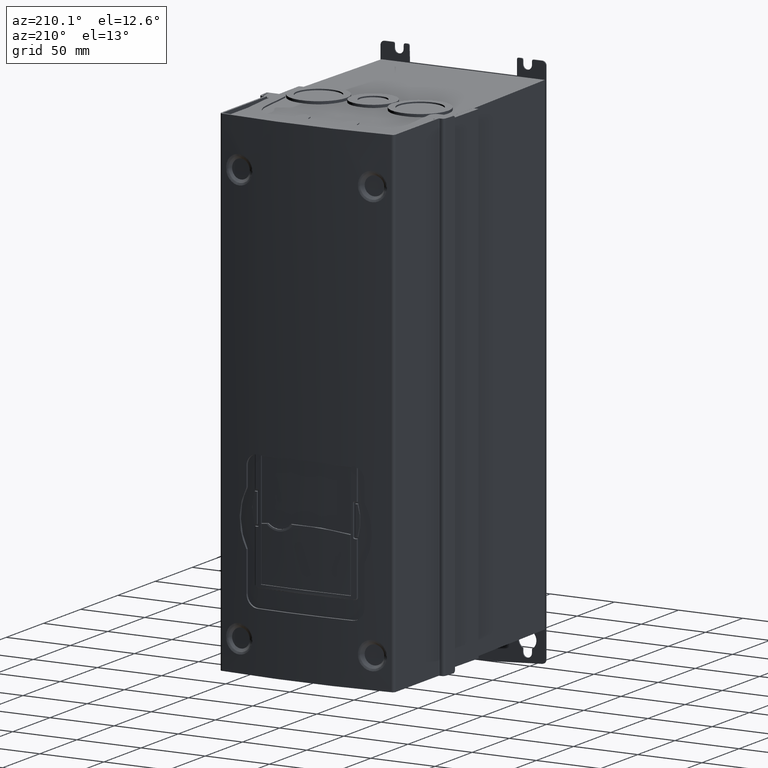
[diagram: clean part render]
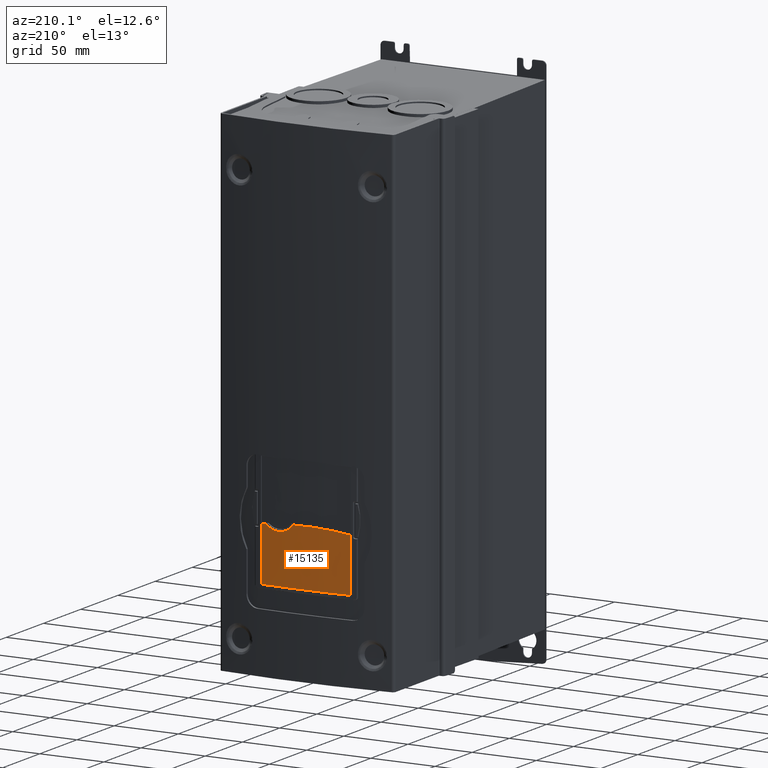
[diagram: same view with one face highlighted and labeled with its STEP entity id]
A machine part, auxiliary view. The second image highlights one B-rep face of the part: STEP entity #15135.
In plain terms, the highlighted cylindrical surface (partial cylindrical patch) has radius 600 mm, axis along (0, -0, 1).
Its self-contained STEP definition (entity closure, byte-faithful):
#3943=CARTESIAN_POINT('',(-4.910040461497E1,8.997870632386E1,
-2.067463539991E2));
#3944=CARTESIAN_POINT('',(-4.913620494693E1,8.997664296501E1,
-2.067463539991E2));
#3945=CARTESIAN_POINT('',(-4.920700181132E1,8.997251864413E1,
-2.067266616654E2));
#3946=CARTESIAN_POINT('',(-4.928245319498E1,8.996845516703E1,
-2.066493539287E2));
#3947=CARTESIAN_POINT('',(-4.930040436687E1,8.996714379017E1,
-2.065805312306E2));
#3948=CARTESIAN_POINT('',(-4.930040441373E1,8.996714378745E1,
-2.065463550026E2));
#3959=CARTESIAN_POINT('',(-1.457658521832E1,-5.090272251112E2,
-2.067463539991E2));
#3960=DIRECTION('',(0.E0,-1.901944992978E-14,1.E0));
#3961=DIRECTION('',(5.753969899440E-2,9.983432190583E-1,1.899517580265E-14));
#3962=AXIS2_PLACEMENT_3D('',#3959,#3960,#3961);
#3968=CARTESIAN_POINT('',(2.014723429621E1,8.996714654835E1,-2.065463534292E2));
#3969=CARTESIAN_POINT('',(2.014723432708E1,8.996714654656E1,-2.065817442643E2));
#3970=CARTESIAN_POINT('',(2.012790989073E1,8.996852765238E1,-2.066519997556E2));
#3971=CARTESIAN_POINT('',(2.005173829151E1,8.997262070216E1,-2.067275796356E2));
#3972=CARTESIAN_POINT('',(1.998212560233E1,8.997669535009E1,-2.067463539991E2));
#3973=CARTESIAN_POINT('',(1.994723417834E1,8.997870632386E1,-2.067463539991E2));
#3982=CARTESIAN_POINT('',(2.014723481109E1,8.996714881255E1,-1.650149600032E2));
#4012=CARTESIAN_POINT('',(1.619779220341E1,9.018302879728E1,-1.644920562806E2));
#4024=CARTESIAN_POINT('',(-5.311221285395E0,9.090120707129E1,
-1.627587209317E2));
#4026=DIRECTION('',(1.239744037261E-8,5.451789044363E-8,1.E0));
#4027=VECTOR('',#4026,4.153139342600E1);
#4028=CARTESIAN_POINT('',(2.014723429621E1,8.996714654835E1,-2.065463534292E2));
#4029=LINE('',#4028,#4027);
#4030=CARTESIAN_POINT('',(-1.506671611864E1,2.300462204111E0,
-3.795765619439E2));
#4031=DIRECTION('',(-5.024181254138E-4,-9.256712524075E-1,3.783285345337E-1));
#4032=DIRECTION('',(1.502044965668E-1,3.739665681038E-1,9.151981289053E-1));
#4033=AXIS2_PLACEMENT_3D('',#4030,#4031,#4032);
#4035=CARTESIAN_POINT('',(1.619779220341E1,9.018302879728E1,-1.644920562806E2));
#4036=CARTESIAN_POINT('',(1.603561090973E1,9.019135883163E1,-1.646562574588E2));
#4037=CARTESIAN_POINT('',(1.448586546034E1,9.027039430398E1,-1.661494307687E2));
#4038=CARTESIAN_POINT('',(1.096708849935E1,9.043717893246E1,-1.682324205036E2));
#4039=CARTESIAN_POINT('',(5.382746825718E0,9.064922024571E1,-1.689761518184E2));
#4040=CARTESIAN_POINT('',(6.307314399236E-1,9.078468008739E1,
-1.677625956803E2));
#4041=CARTESIAN_POINT('',(-2.641353769786E0,9.085564687397E1,
-1.656985353631E2));
#4042=CARTESIAN_POINT('',(-4.367698705505E0,9.088634013089E1,
-1.639842337949E2));
#4043=CARTESIAN_POINT('',(-5.112130195591E0,9.089813230105E1,
-1.630326955283E2));
#4044=CARTESIAN_POINT('',(-5.311221285395E0,9.090120707129E1,
-1.627587209317E2));
#4046=CARTESIAN_POINT('',(-1.456639307893E1,2.564886137315E0,
-3.758908237096E2));
#4047=DIRECTION('',(-2.462568447848E-5,-9.237853525514E-1,3.829107230217E-1));
#4048=DIRECTION('',(4.008280002142E-2,3.826020895599E-1,9.230433414563E-1));
#4049=AXIS2_PLACEMENT_3D('',#4046,#4047,#4048);
#4051=DIRECTION('',(-2.890662251042E-8,1.393560158366E-7,-1.E0));
#4052=VECTOR('',#4051,4.153141326405E1);
#4053=CARTESIAN_POINT('',(-4.930040321320E1,8.996713799980E1,
-1.650149417386E2));
#4054=LINE('',#4053,#4052);
#7326=CARTESIAN_POINT('',(-4.930040441373E1,8.996714378745E1,
-2.065463550026E2));
#7327=VERTEX_POINT('',#7326);
#7328=CARTESIAN_POINT('',(-4.930040321320E1,8.996713799980E1,
-1.650149417386E2));
#7329=VERTEX_POINT('',#7328);
#7330=CARTESIAN_POINT('',(-4.910040461497E1,8.997870632386E1,
-2.067463539991E2));
#7331=VERTEX_POINT('',#7330);
#7332=CARTESIAN_POINT('',(1.994723417834E1,8.997870632386E1,-2.067463539991E2));
#7333=VERTEX_POINT('',#7332);
#7334=CARTESIAN_POINT('',(2.014723429621E1,8.996714654835E1,-2.065463534292E2));
#7335=VERTEX_POINT('',#7334);
#7338=VERTEX_POINT('',#3982);
#7341=VERTEX_POINT('',#4012);
#7342=VERTEX_POINT('',#4024);
#15119=CARTESIAN_POINT('',(-1.457658521832E1,-5.090272251112E2,
-2.075739720594E2));
#15120=DIRECTION('',(0.E0,-1.901944992978E-14,1.E0));
#15121=DIRECTION('',(7.333333333332E-2,9.973074862961E-1,1.896823980020E-14));
#15122=AXIS2_PLACEMENT_3D('',#15119,#15120,#15121);
#15123=CYLINDRICAL_SURFACE('',#15122,6.000000000001E2);
#15124=ORIENTED_EDGE('',*,*,#14915,.F.);
#15125=ORIENTED_EDGE('',*,*,#14936,.F.);
#15126=ORIENTED_EDGE('',*,*,#14959,.T.);
#15127=ORIENTED_EDGE('',*,*,#15107,.T.);
#15128=ORIENTED_EDGE('',*,*,#15067,.T.);
#15130=ORIENTED_EDGE('',*,*,#15129,.T.);
#15131=ORIENTED_EDGE('',*,*,#14871,.T.);
#15132=ORIENTED_EDGE('',*,*,#14894,.F.);
#15133=EDGE_LOOP('',(#15124,#15125,#15126,#15127,#15128,#15130,#15131,#15132));
#15134=FACE_OUTER_BOUND('',#15133,.F.);
#15135=ADVANCED_FACE('',(#15134),#15123,.T.);
#3949=B_SPLINE_CURVE_WITH_KNOTS('',3,(#3943,#3944,#3945,#3946,#3947,#3948),
.UNSPECIFIED.,.F.,.F.,(4,1,1,4),(0.E0,3.333333333333E-1,6.666666666667E-1,1.E0),
.UNSPECIFIED.);
#3963=CIRCLE('',#3962,6.000000000001E2);
#3974=B_SPLINE_CURVE_WITH_KNOTS('',3,(#3968,#3969,#3970,#3971,#3972,#3973),
.UNSPECIFIED.,.F.,.F.,(4,1,1,4),(0.E0,3.333333333333E-1,6.666666666667E-1,1.E0),
.UNSPECIFIED.);
#4034=CIRCLE('',#4033,2.344373340270E2);
#4045=B_SPLINE_CURVE_WITH_KNOTS('',3,(#4035,#4036,#4037,#4038,#4039,#4040,#4041,
#4042,#4043,#4044),.UNSPECIFIED.,.F.,.F.,(4,1,1,1,1,1,1,4),(0.E0,
2.822892959348E-2,2.631391194103E-1,4.896180295285E-1,7.039362143868E-1,
8.524307373973E-1,9.585992075724E-1,1.E0),.UNSPECIFIED.);
#4050=CIRCLE('',#4049,2.308959999079E2);
#14871=EDGE_CURVE('',#7329,#7327,#4054,.T.);
#14894=EDGE_CURVE('',#7331,#7327,#3949,.T.);
#14915=EDGE_CURVE('',#7333,#7331,#3963,.T.);
#14936=EDGE_CURVE('',#7335,#7333,#3974,.T.);
#14959=EDGE_CURVE('',#7335,#7338,#4029,.T.);
#15067=EDGE_CURVE('',#7341,#7342,#4045,.T.);
#15107=EDGE_CURVE('',#7338,#7341,#4034,.T.);
#15129=EDGE_CURVE('',#7342,#7329,#4050,.T.);